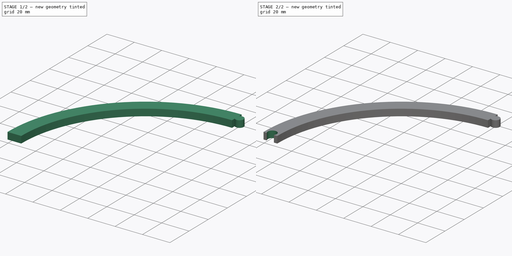
[diagram: build sequence overview — one tinted view per stage of 2, left to right]
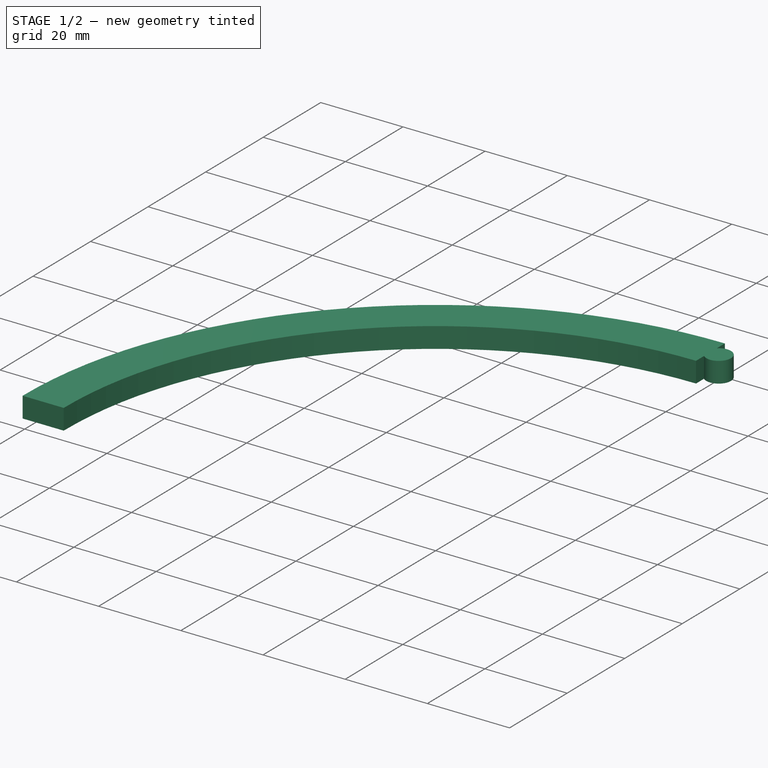
[diagram: stage 1 of 2 — iso view after this stage's code; geometry added in this stage tinted green]
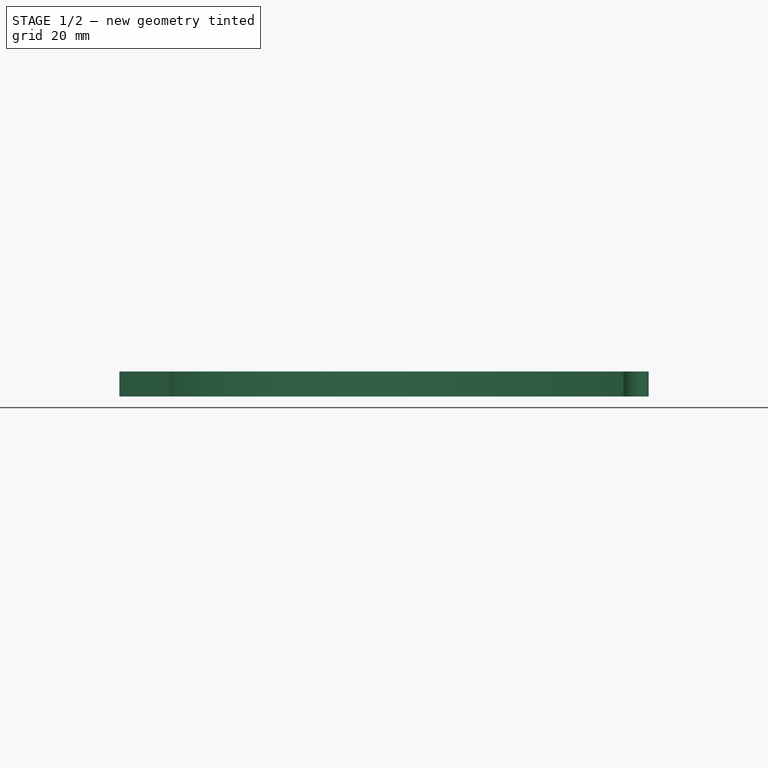
[diagram: stage 1 of 2 — front view after this stage's code; geometry added in this stage tinted green]
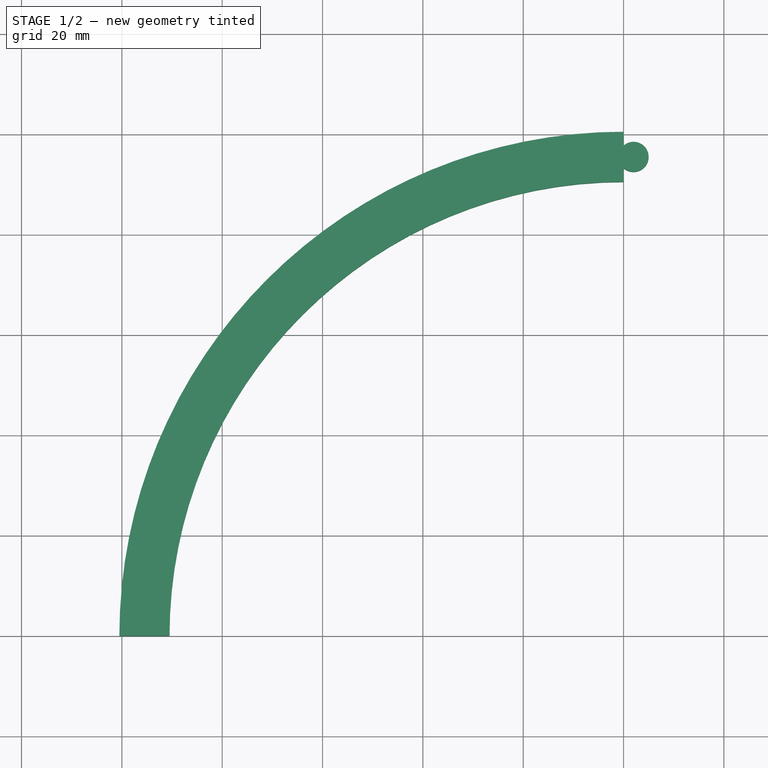
[diagram: stage 1 of 2 — top view after this stage's code; geometry added in this stage tinted green]
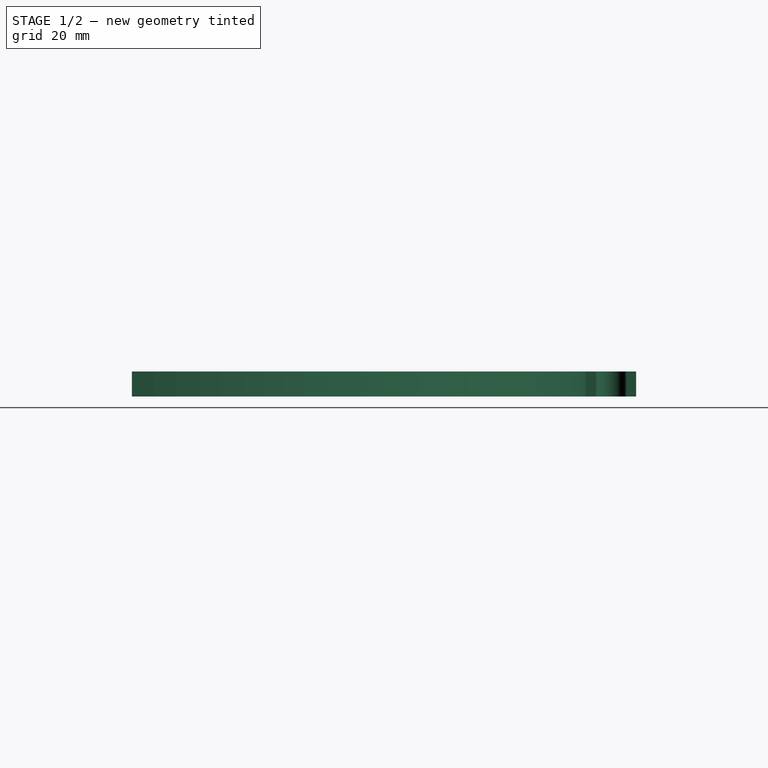
[diagram: stage 1 of 2 — right view after this stage's code; geometry added in this stage tinted green]
FCSTD DOCUMENT  (FreeCAD 0.16R6138 (Git))
Label: surPlateau
License: CreativeCommons Attribution
LicenseURL: http://creativecommons.org/licenses/by/4.0/
objects: Sketcher::SketchObject×3, PartDesign::Pad×2, PartDesign::Pocket×1
note: 9 computed .brp shape members not serialized (recipe doc carries the construction recipe); baked Part::Feature solids carry a one-line shape summary decoded from their .brp

FEATURE [Sketcher::SketchObject] Sketch
  sketch-geometry (4):
    g0: ArcOfCircle CenterX=0 CenterY=0 CenterZ=0 NormalX=0 NormalY=0 NormalZ=1 Radius=90.5 StartAngle=1.5708 EndAngle=3.14159
    g1: ArcOfCircle CenterX=0 CenterY=0 CenterZ=0 NormalX=0 NormalY=0 NormalZ=1 Radius=100.5 StartAngle=1.5708 EndAngle=3.14159
    g2: LineSegment StartX=0 StartY=100.5 StartZ=0 EndX=0 EndY=90.5 EndZ=0
    g3: LineSegment StartX=-100.5 StartY=0 StartZ=0 EndX=-90.5 EndY=0 EndZ=0
  constraints (15):
    c: PointOnObject(g0,g-1)
    c: PointOnObject(g0,g-2)
    c: Radius(g0) = 90.5
    c: PointOnObject(g1,g-1)
    c: PointOnObject(g1,g-2)
    c: Radius(g1) = 100.5
    c: Horizontal(g3)
    c: Vertical(g2)
    c: Coincident(g0,g2)
    c: Coincident(g0,g3)
    c: Coincident(g1,g2)
    c: Coincident(g1,g3)
    c: Equal(g3,g2)
    c: PointOnObject(g0,g-1)
    c: PointOnObject(g0,g-2)
FEATURE [PartDesign::Pad] Pad
  Length = 5
  Length2 = 100
  Midplane = true
  Sketch = -> Sketch
  Type = 0
FEATURE [Sketcher::SketchObject] Sketch001
  ExternalGeometry = -> [Pad]
  Placement = pos=(0,0,2.5) rot=(0,0,1;0rad)
  Support = -> Pad [Face6]
  sketch-geometry (3):
    g0: Circle CenterX=2 CenterY=95.5 CenterZ=0 NormalX=0 NormalY=0 NormalZ=1 Radius=3
    g1: GeomPoint [constr] X=0 Y=95.5 Z=0
    g2: LineSegment [constr] StartX=2 StartY=95.5 StartZ=0 EndX=0 EndY=95.5 EndZ=0
  constraints (7):
    c: PointOnObject(g1,g-3)
    c: Symmetric(g-3,g-3,g1)
    c: Horizontal(g2)
    c: Coincident(g2,g1)
    c: Coincident(g0,g2)
    c: Radius(g0) = 3
    c: Distance(g2) = 2
FEATURE [PartDesign::Pad] Pad001
  Length = 5
  Length2 = 100
  Reversed = true
  Sketch = -> Sketch001
  Type = 0
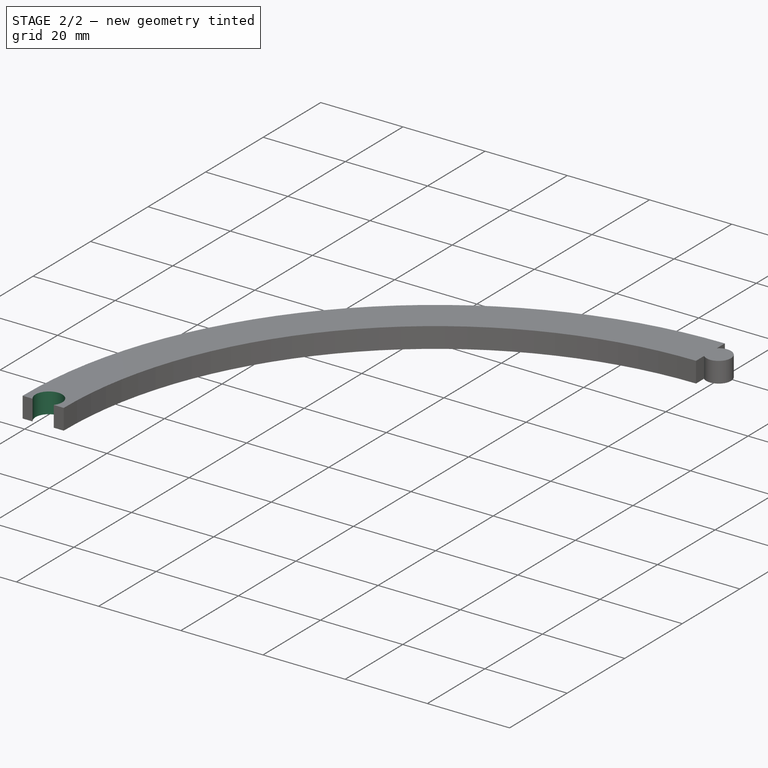
[diagram: stage 2 of 2 — iso view after this stage's code; geometry added in this stage tinted green]
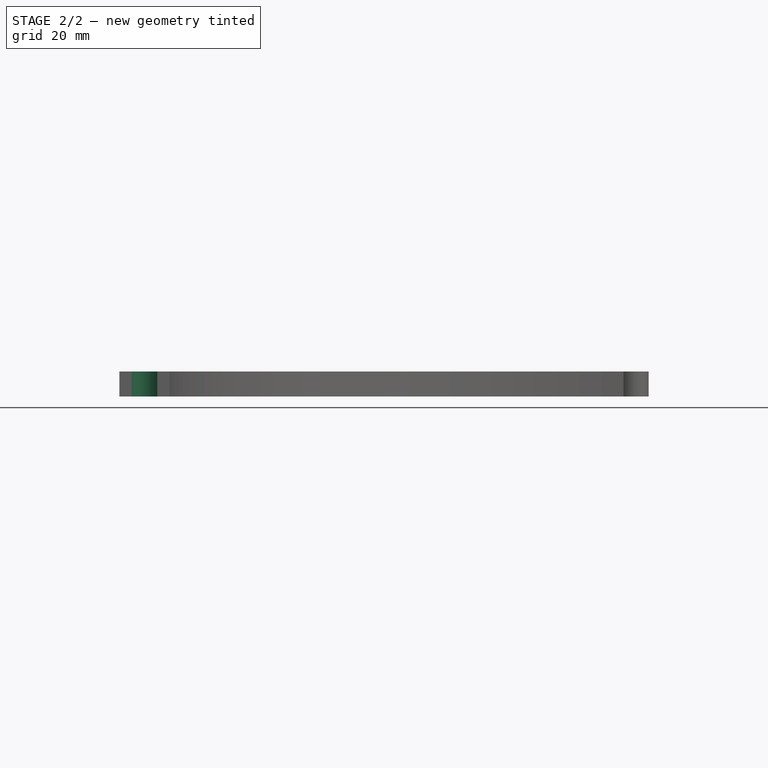
[diagram: stage 2 of 2 — front view after this stage's code; geometry added in this stage tinted green]
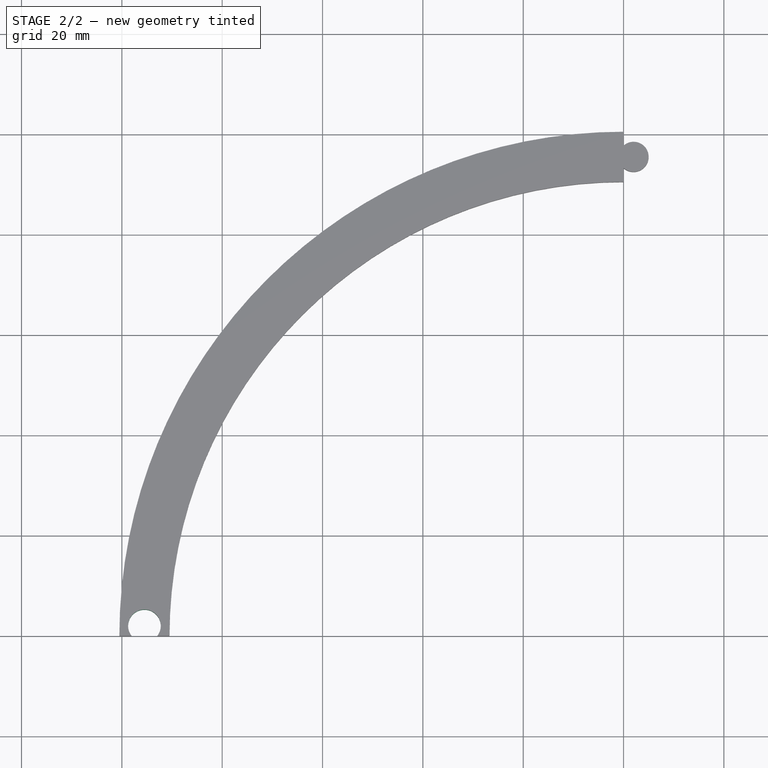
[diagram: stage 2 of 2 — top view after this stage's code; geometry added in this stage tinted green]
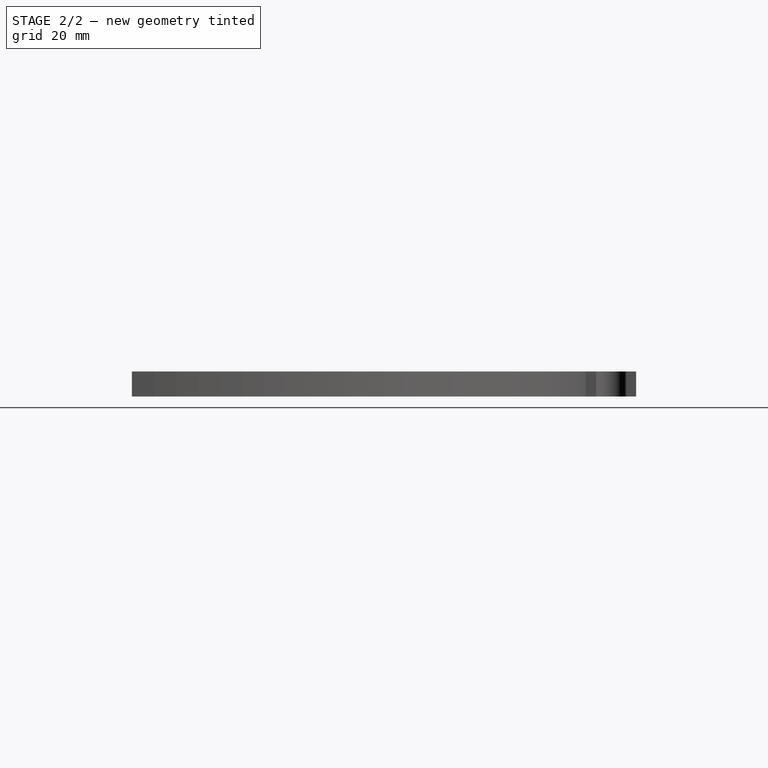
[diagram: stage 2 of 2 — right view after this stage's code; geometry added in this stage tinted green]
FEATURE [Sketcher::SketchObject] Sketch002
  ExternalGeometry = -> [Pad001]
  Placement = pos=(0,0,2.5) rot=(0,0,1;0rad)
  Support = -> Pad001 [Face5]
  sketch-geometry (3):
    g0: GeomPoint [constr] X=-95.5 Y=0 Z=0
    g1: LineSegment [constr] StartX=-95.5 StartY=2 StartZ=0 EndX=-95.5 EndY=0 EndZ=0
    g2: Circle CenterX=-95.5 CenterY=2 CenterZ=0 NormalX=0 NormalY=0 NormalZ=1 Radius=3.25
  constraints (7):
    c: PointOnObject(g0,g-3)
    c: Symmetric(g-3,g-3,g0)
    c: Vertical(g1)
    c: Coincident(g1,g0)
    c: Coincident(g2,g1)
    c: Radius(g2) = 3.25
    c: Distance(g1) = 2
FEATURE [PartDesign::Pocket] Pocket  label="surPlateau"
  Length = 5
  Sketch = -> Sketch002
  Type = 0
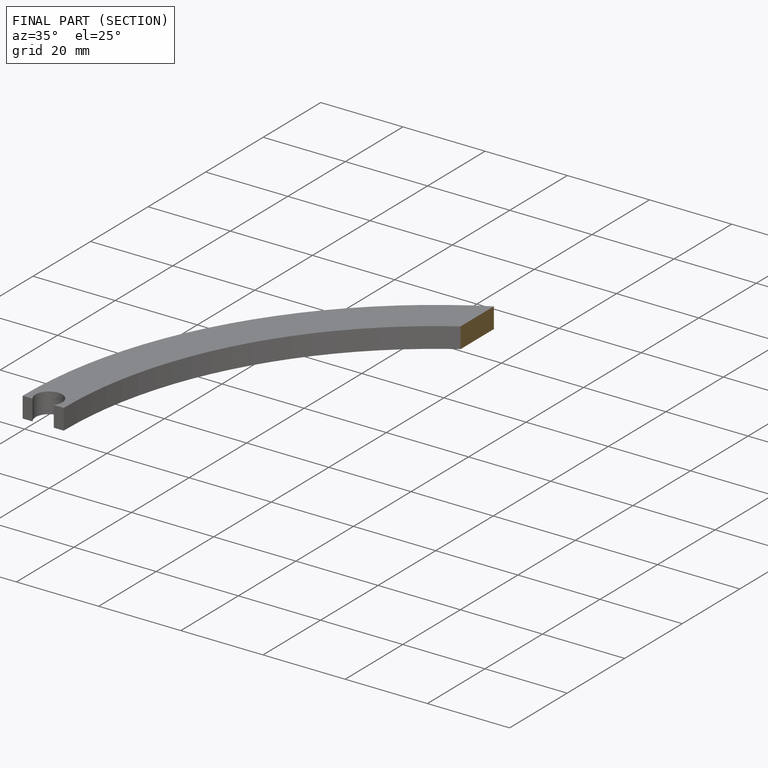
[diagram: finished part — half-section view (interior)]
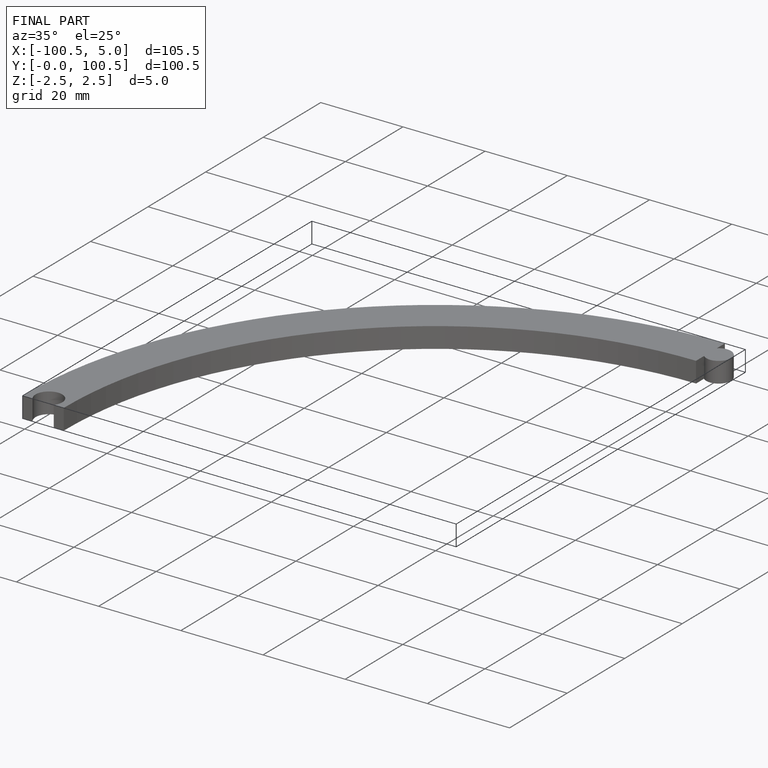
[diagram: finished part — iso view with bounding-box wireframe]
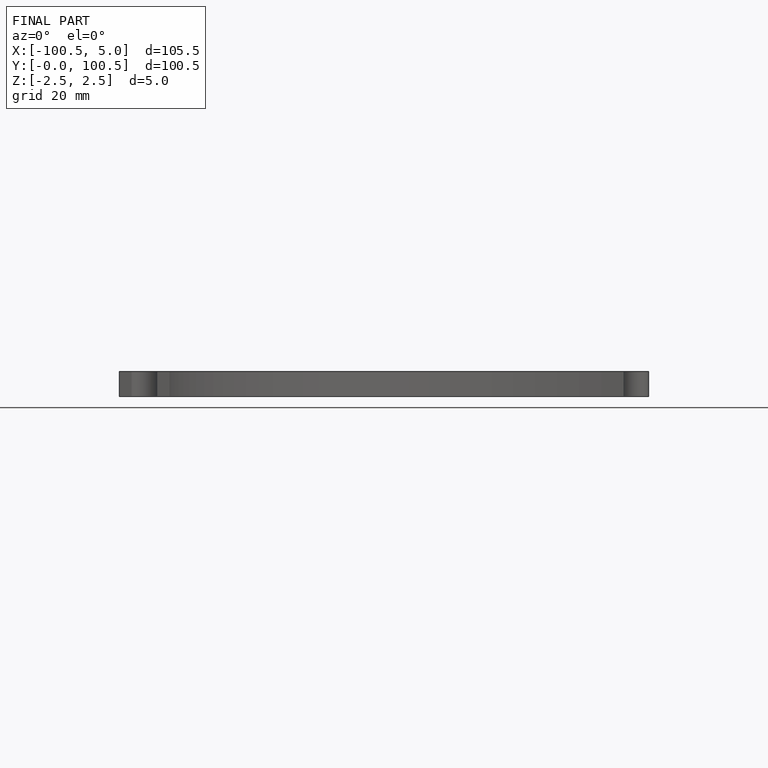
[diagram: finished part — front view with bounding-box wireframe]
